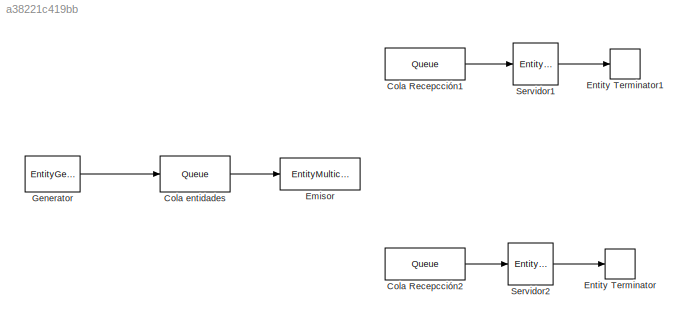
MODEL slx_a38221c419bb
KIND model
CONFIG AbsTol = auto
CONFIG EnableMultiTasking = off
CONFIG FixedStep = auto
CONFIG MaxStep = auto
CONFIG MinStep = auto
CONFIG RelTol = 1e-3
CONFIG SampleTimeConstraint = Unconstrained
CONFIG SolverName = VariableStepAuto
CONFIG StartTime = 0.0
CONFIG StopTime = 10.0
BLOCK [Queue] Cola Recepcción1
  Capacity = 5
  EntityArrivalSource = Multicast
  MulticastTag = Dato
  OutputPortMap = o5
  OutputPortMessageModes = m
BLOCK [Queue] Cola Recepcción2
  Capacity = 5
  EntityArrivalSource = Multicast
  MulticastTag = Dato
  OutputPortMap = o5
  OutputPortMessageModes = m
BLOCK [Queue] Cola entidades
  InputPortMap = u0
  InputPortMessageModes = m
  OutputPortMap = o5
  OutputPortMessageModes = m
BLOCK [EntityMulticast] Emisor
  InputPortMessageModes = m
  MulticastTag = Dato
  Tag = Dato
BLOCK [EntityTerminator] Entity Terminator
  InputPortMap = u0
  InputPortMessageModes = m
BLOCK [EntityTerminator] Entity Terminator1
  InputPortMap = u0
  InputPortMessageModes = m
BLOCK [EntityGenerator] Generator
  EntityType = Structured
  EntityTypeName = Entity
  OutputPortMap = o3
  OutputPortMessageModes = m
  TimeSource = MATLAB action
BLOCK [EntityServer] Servidor1
  Capacity = 1
  InputPortMap = u2
  InputPortMessageModes = m
  OutputPortMap = o9
  OutputPortMessageModes = m
BLOCK [EntityServer] Servidor2
  Capacity = 1
  InputPortMap = u2
  InputPortMessageModes = m
  OutputPortMap = o9
  OutputPortMessageModes = m
LINE Cola Recepcción1:1 -> Servidor1:1
LINE Cola Recepcción2:1 -> Servidor2:1
LINE Cola entidades:1 -> Emisor:1
LINE Generator:1 -> Cola entidades:1
LINE Servidor1:1 -> Entity Terminator1:1
LINE Servidor2:1 -> Entity Terminator:1
